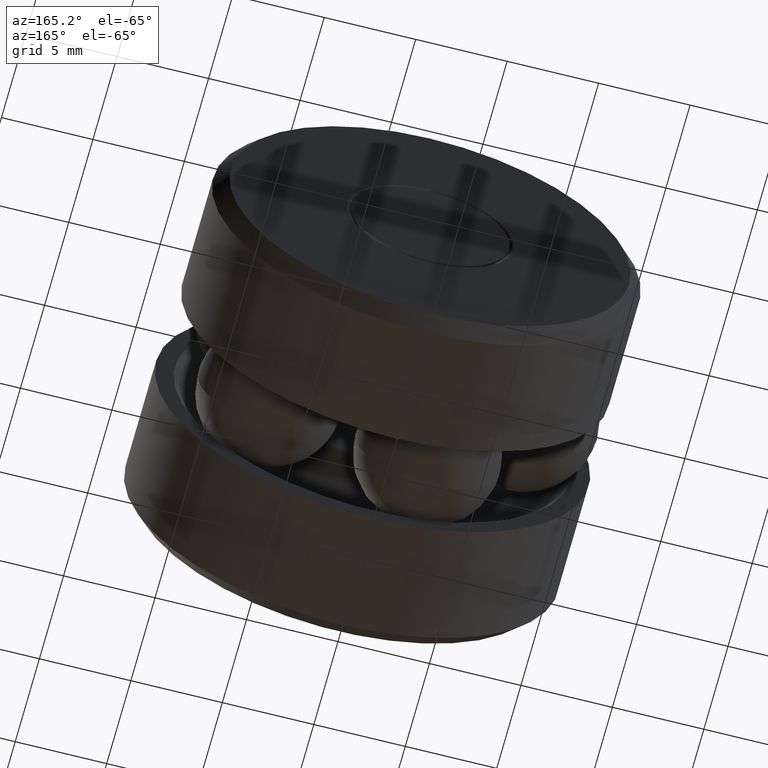
[diagram: clean part render]
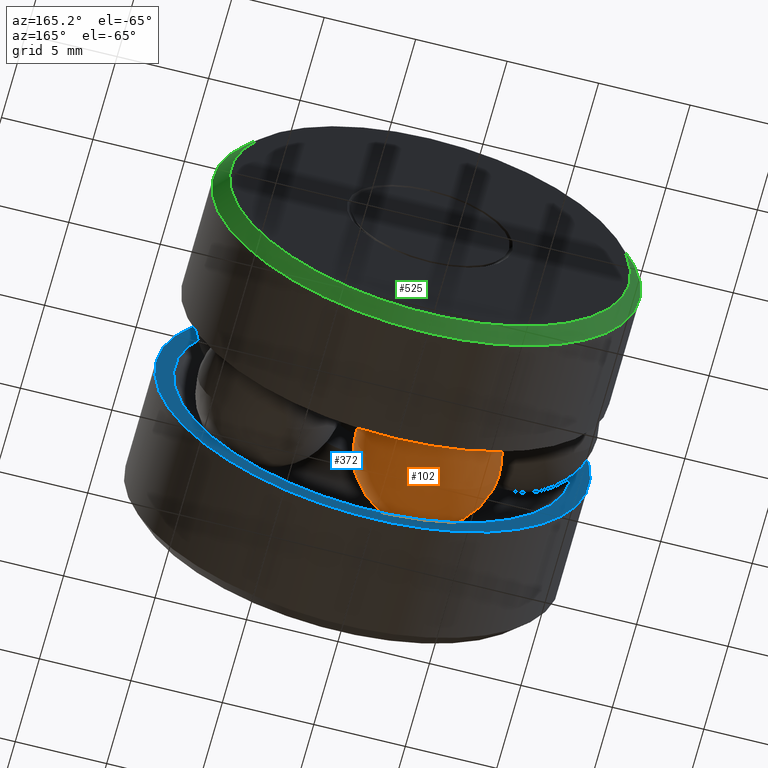
[diagram: same view with three faces highlighted in distinct colors, each labeled with its STEP entity id]
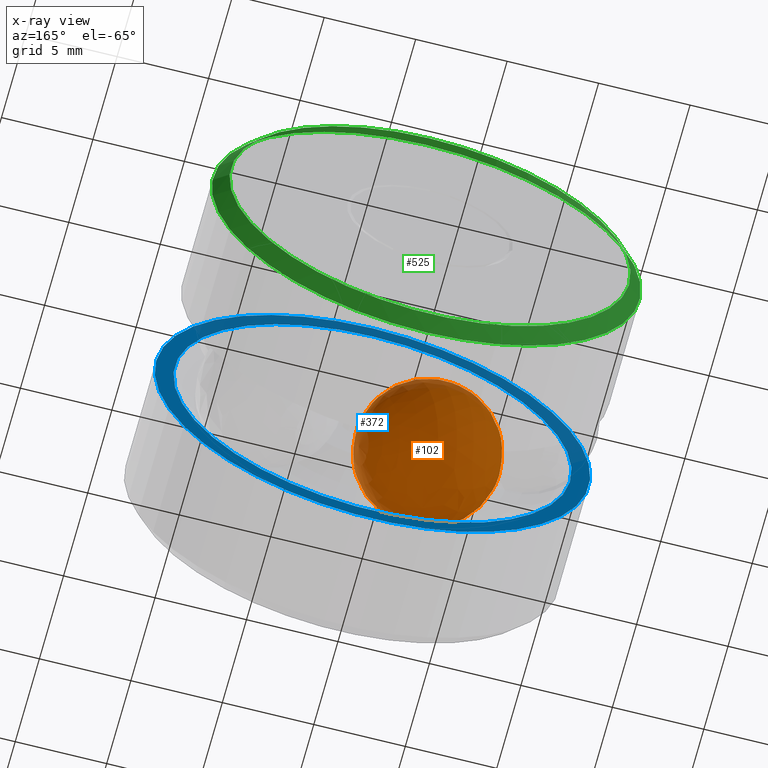
[diagram: x-ray of the same camera — body ghosted, the three highlighted faces saturated]
A machine part, auxiliary view with three faces highlighted in distinct colors.
The next image is the same camera in x-ray (body ghosted, the three faces saturated) — at least one of them is partly hidden behind the body in this view.
Their STEP definitions:

[orange] entity #102 — the highlighted spherical surface has radius 3.9624 mm.
#13 = DIRECTION ( 'NONE',  ( -0.9510565162951500900, 0.0000000000000000000, 0.3090169943749582800 ) ) ;
#102 = ADVANCED_FACE ( 'NONE', ( ), #123, .T. ) ;
#123 = SPHERICAL_SURFACE ( 'NONE', #204, 0.1560000000000000000 ) ;
#204 = AXIS2_PLACEMENT_3D ( 'NONE', #269, #13, #522 ) ;
#269 = CARTESIAN_POINT ( 'NONE',  ( -0.09386391204139353500, 0.3749999999999999400, -0.2888834168246517400 ) ) ;
#522 = DIRECTION ( 'NONE',  ( -0.3090169943749582800, 0.0000000000000000000, -0.9510565162951500900 ) ) ;

[blue] entity #372 — the highlighted planar face has unit normal (-0, 1, 0).
#5 = ORIENTED_EDGE ( 'NONE', *, *, #266, .T. ) ;
#11 = AXIS2_PLACEMENT_3D ( 'NONE', #392, #136, #362 ) ;
#12 = FACE_BOUND ( 'NONE', #261, .T. ) ;
#14 = CARTESIAN_POINT ( 'NONE',  ( 0.0000000000000000000, 0.2813999999999999800, 0.4285499999999999300 ) ) ;
#122 = VERTEX_POINT ( 'NONE', #178 ) ;
#128 = DIRECTION ( 'NONE',  ( -0.0000000000000000000, 1.000000000000000000, -0.0000000000000000000 ) ) ;
#129 = CARTESIAN_POINT ( 'NONE',  ( 0.0000000000000000000, 0.2813999999999999300, 0.0000000000000000000 ) ) ;
#136 = DIRECTION ( 'NONE',  ( -0.0000000000000000000, 1.000000000000000000, 0.0000000000000000000 ) ) ;
#139 = VERTEX_POINT ( 'NONE', #14 ) ;
#159 = DIRECTION ( 'NONE',  ( 0.0000000000000000000, 0.0000000000000000000, 1.000000000000000000 ) ) ;
#167 = ORIENTED_EDGE ( 'NONE', *, *, #188, .F. ) ;
#169 = DIRECTION ( 'NONE',  ( 0.0000000000000000000, 0.0000000000000000000, 1.000000000000000000 ) ) ;
#178 = CARTESIAN_POINT ( 'NONE',  ( 0.0000000000000000000, 0.2813999999999999300, 0.4687500000000000000 ) ) ;
#188 = EDGE_CURVE ( 'NONE', #139, #139, #325, .T. ) ;
#194 = AXIS2_PLACEMENT_3D ( 'NONE', #129, #128, #159 ) ;
#208 = DIRECTION ( 'NONE',  ( -0.0000000000000000000, 1.000000000000000000, -0.0000000000000000000 ) ) ;
#239 = FACE_OUTER_BOUND ( 'NONE', #489, .T. ) ;
#261 = EDGE_LOOP ( 'NONE', ( #167 ) ) ;
#266 = EDGE_CURVE ( 'NONE', #122, #122, #504, .T. ) ;
#325 = CIRCLE ( 'NONE', #469, 0.4285499999999999300 ) ;
#362 = DIRECTION ( 'NONE',  ( 0.0000000000000000000, 0.0000000000000000000, 1.000000000000000000 ) ) ;
#372 = ADVANCED_FACE ( 'NONE', ( #239, #12 ), #444, .T. ) ;
#392 = CARTESIAN_POINT ( 'NONE',  ( -0.4687500000000000000, 0.2813999999999999800, 0.0000000000000000000 ) ) ;
#444 = PLANE ( 'NONE',  #11 ) ;
#469 = AXIS2_PLACEMENT_3D ( 'NONE', #498, #208, #169 ) ;
#489 = EDGE_LOOP ( 'NONE', ( #5 ) ) ;
#498 = CARTESIAN_POINT ( 'NONE',  ( 0.0000000000000000000, 0.2813999999999999800, 0.0000000000000000000 ) ) ;
#504 = CIRCLE ( 'NONE', #194, 0.4687500000000000000 ) ;

[green] entity #525 — the highlighted conical surface has half-angle 45 deg.
#15 = CARTESIAN_POINT ( 'NONE',  ( 0.0000000000000000000, 0.7500000000000001100, 0.0000000000000000000 ) ) ;
#30 = VERTEX_POINT ( 'NONE', #207 ) ;
#46 = CARTESIAN_POINT ( 'NONE',  ( 0.0000000000000000000, 0.7500000000000001100, 0.4317499999999999100 ) ) ;
#50 = DIRECTION ( 'NONE',  ( -0.0000000000000000000, 1.000000000000000000, -0.0000000000000000000 ) ) ;
#85 = DIRECTION ( 'NONE',  ( 0.0000000000000000000, 0.0000000000000000000, 1.000000000000000000 ) ) ;
#87 = DIRECTION ( 'NONE',  ( -0.0000000000000000000, 1.000000000000000000, -0.0000000000000000000 ) ) ;
#90 = ORIENTED_EDGE ( 'NONE', *, *, #191, .T. ) ;
#138 = CARTESIAN_POINT ( 'NONE',  ( 0.0000000000000000000, 0.7199999999999997500, 0.0000000000000000000 ) ) ;
#153 = DIRECTION ( 'NONE',  ( 0.0000000000000000000, 0.0000000000000000000, 1.000000000000000000 ) ) ;
#191 = EDGE_CURVE ( 'NONE', #30, #30, #312, .T. ) ;
#193 = CIRCLE ( 'NONE', #512, 0.4317499999999999100 ) ;
#197 = EDGE_CURVE ( 'NONE', #475, #475, #193, .T. ) ;
#207 = CARTESIAN_POINT ( 'NONE',  ( 0.0000000000000000000, 0.7199999999999997500, 0.4617499999999999900 ) ) ;
#253 = EDGE_LOOP ( 'NONE', ( #255 ) ) ;
#255 = ORIENTED_EDGE ( 'NONE', *, *, #197, .F. ) ;
#259 = CARTESIAN_POINT ( 'NONE',  ( 0.0000000000000000000, 0.7500000000000001100, 0.0000000000000000000 ) ) ;
#268 = AXIS2_PLACEMENT_3D ( 'NONE', #259, #277, #347 ) ;
#277 = DIRECTION ( 'NONE',  ( 0.0000000000000000000, -1.000000000000000000, 0.0000000000000000000 ) ) ;
#289 = CONICAL_SURFACE ( 'NONE', #268, 0.4317499999999999100, 0.7853981633974437300 ) ;
#312 = CIRCLE ( 'NONE', #492, 0.4617499999999999900 ) ;
#347 = DIRECTION ( 'NONE',  ( 0.0000000000000000000, 0.0000000000000000000, -1.000000000000000000 ) ) ;
#418 = FACE_OUTER_BOUND ( 'NONE', #532, .T. ) ;
#475 = VERTEX_POINT ( 'NONE', #46 ) ;
#492 = AXIS2_PLACEMENT_3D ( 'NONE', #138, #50, #153 ) ;
#512 = AXIS2_PLACEMENT_3D ( 'NONE', #15, #87, #85 ) ;
#518 = FACE_BOUND ( 'NONE', #253, .T. ) ;
#525 = ADVANCED_FACE ( 'NONE', ( #418, #518 ), #289, .T. ) ;
#532 = EDGE_LOOP ( 'NONE', ( #90 ) ) ;